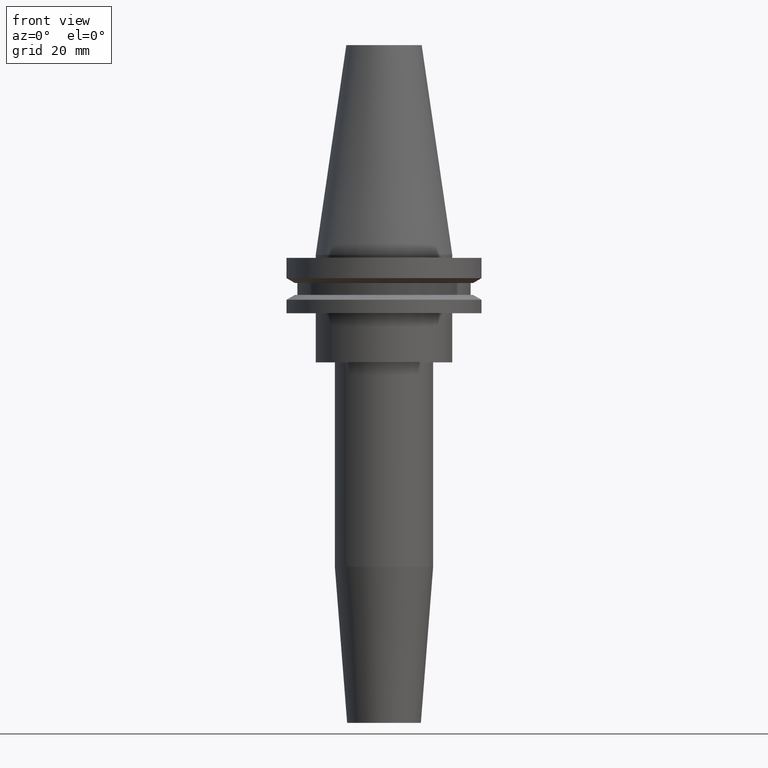
[diagram: clean part render]
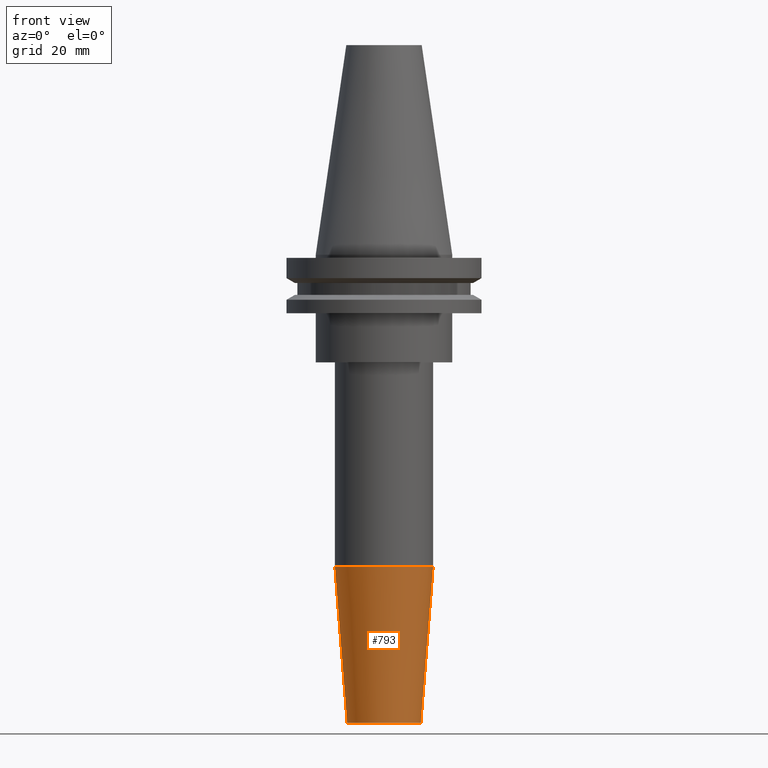
[diagram: same view with one face highlighted and labeled with its STEP entity id]
A machine part, front view. The second image highlights one B-rep face of the part: STEP entity #793.
In plain terms, the highlighted conical surface has half-angle 4.5 deg.
Its self-contained STEP definition (entity closure, byte-faithful):
#17 = CARTESIAN_POINT ( 'NONE',  ( 0.000000000000000000, 0.000000000000000000, -101.5751810552958716 ) ) ;
#35 = EDGE_LOOP ( 'NONE', ( #800, #743, #455, #458 ) ) ;
#84 = CARTESIAN_POINT ( 'NONE',  ( -12.00000000000000000, 1.469576158976823947E-15, -152.4000000000000057 ) ) ;
#116 = LINE ( 'NONE', #313, #468 ) ;
#136 = DIRECTION ( 'NONE',  ( -0.000000000000000000, -0.000000000000000000, 1.000000000000000000 ) ) ;
#137 = LINE ( 'NONE', #84, #806 ) ;
#141 = DIRECTION ( 'NONE',  ( -0.07845909572783678343, 9.608468044709108930E-18, 0.9969173337331286300 ) ) ;
#145 = VERTEX_POINT ( 'NONE', #258 ) ;
#149 = VERTEX_POINT ( 'NONE', #320 ) ;
#179 = DIRECTION ( 'NONE',  ( 1.000000000000000000, 0.000000000000000000, 0.000000000000000000 ) ) ;
#256 = EDGE_CURVE ( 'NONE', #145, #453, #137, .T. ) ;
#258 = CARTESIAN_POINT ( 'NONE',  ( -12.00000000000000000, 1.714505518806294638E-15, -152.4000000000000057 ) ) ;
#313 = CARTESIAN_POINT ( 'NONE',  ( 12.00000000000000000, 0.000000000000000000, -152.4000000000000057 ) ) ;
#320 = CARTESIAN_POINT ( 'NONE',  ( 12.00000000000000000, 0.000000000000000000, -152.4000000000000057 ) ) ;
#321 = EDGE_CURVE ( 'NONE', #453, #667, #726, .T. ) ;
#336 = FACE_OUTER_BOUND ( 'NONE', #35, .T. ) ;
#415 = DIRECTION ( 'NONE',  ( -0.000000000000000000, -0.000000000000000000, 1.000000000000000000 ) ) ;
#452 = DIRECTION ( 'NONE',  ( -0.000000000000000000, -0.000000000000000000, 1.000000000000000000 ) ) ;
#453 = VERTEX_POINT ( 'NONE', #698 ) ;
#455 = ORIENTED_EDGE ( 'NONE', *, *, #617, .T. ) ;
#458 = ORIENTED_EDGE ( 'NONE', *, *, #321, .F. ) ;
#468 = VECTOR ( 'NONE', #577, 1000.000000000000000 ) ;
#577 = DIRECTION ( 'NONE',  ( 0.07845909572783678343, 0.000000000000000000, 0.9969173337331286300 ) ) ;
#608 = CARTESIAN_POINT ( 'NONE',  ( 16.00000000000000000, 0.000000000000000000, -101.5751810552958716 ) ) ;
#617 = EDGE_CURVE ( 'NONE', #149, #667, #116, .T. ) ;
#628 = EDGE_CURVE ( 'NONE', #145, #149, #808, .T. ) ;
#642 = AXIS2_PLACEMENT_3D ( 'NONE', #17, #415, #672 ) ;
#652 = AXIS2_PLACEMENT_3D ( 'NONE', #772, #452, #179 ) ;
#667 = VERTEX_POINT ( 'NONE', #608 ) ;
#672 = DIRECTION ( 'NONE',  ( 1.000000000000000000, 0.000000000000000000, 0.000000000000000000 ) ) ;
#698 = CARTESIAN_POINT ( 'NONE',  ( -16.00000000000000000, 1.959434878635765131E-15, -101.5751810552958716 ) ) ;
#726 = CIRCLE ( 'NONE', #642, 16.00000000000000000 ) ;
#730 = CARTESIAN_POINT ( 'NONE',  ( 0.000000000000000000, 0.000000000000000000, -152.4000000000000057 ) ) ;
#743 = ORIENTED_EDGE ( 'NONE', *, *, #628, .T. ) ;
#748 = AXIS2_PLACEMENT_3D ( 'NONE', #730, #136, #823 ) ;
#772 = CARTESIAN_POINT ( 'NONE',  ( 0.000000000000000000, 0.000000000000000000, -152.4000000000000057 ) ) ;
#793 = ADVANCED_FACE ( 'NONE', ( #336 ), #830, .T. ) ;
#800 = ORIENTED_EDGE ( 'NONE', *, *, #256, .F. ) ;
#806 = VECTOR ( 'NONE', #141, 1000.000000000000000 ) ;
#808 = CIRCLE ( 'NONE', #652, 12.00000000000000000 ) ;
#823 = DIRECTION ( 'NONE',  ( 1.000000000000000000, 0.000000000000000000, 0.000000000000000000 ) ) ;
#830 = CONICAL_SURFACE ( 'NONE', #748, 12.00000000000000000, 0.07853981633973664001 ) ;